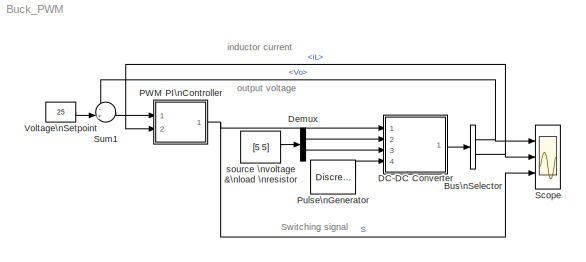
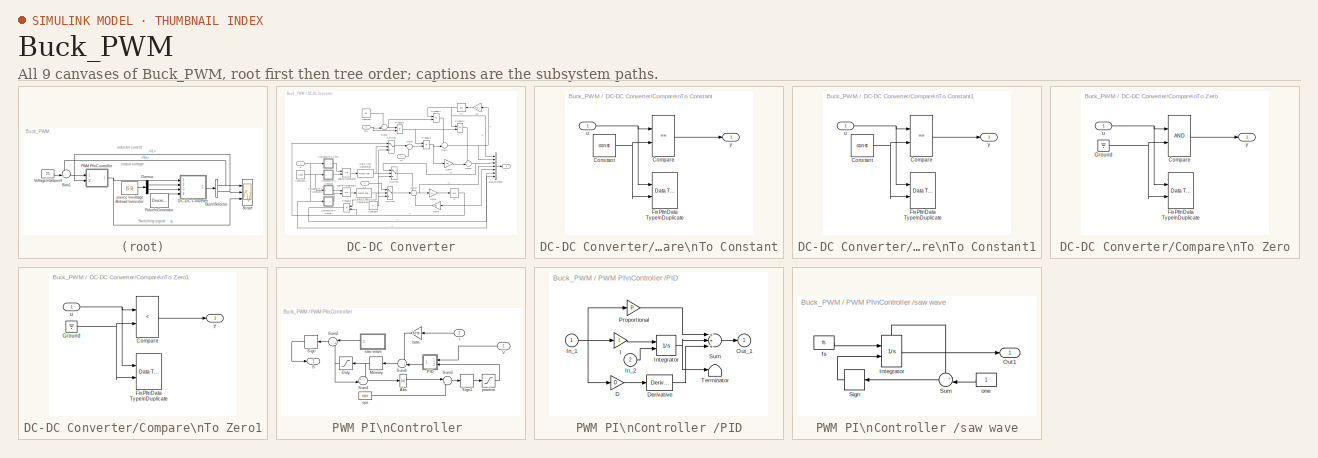
[diagram: thumbnail index - all 9 canvases of the model, root first then tree order]
MODEL Buck_PWM
KIND model
CONFIG InitFcn = buck1
BLOCK [BusSelector] Bus\nSelector
  OutputAsBus = off
  OutputSignals = Vo,iL
  Ports = [1, 2]
  SID = 1
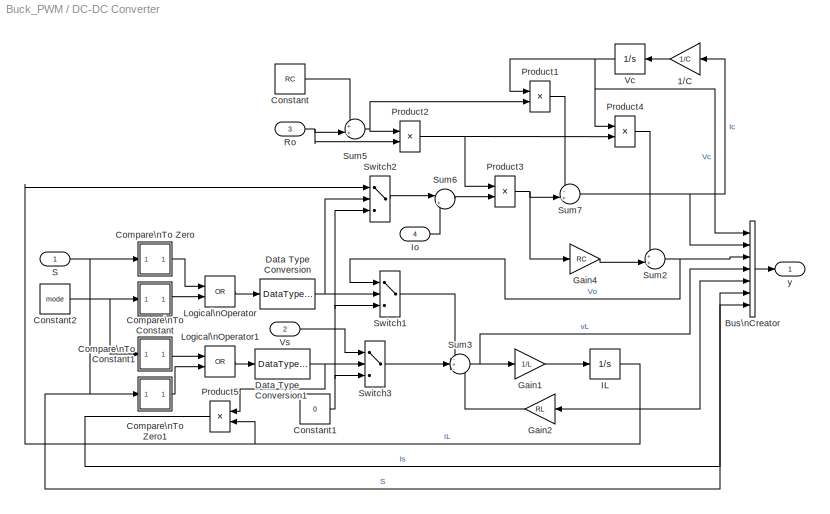
BLOCK [SubSystem] DC-DC Converter
  Ports = [4, 1]
  RequestExecContextInheritance = off
  SID = 2
BLOCK [Gain] DC-DC Converter/1//C
  Gain = 1/C
  SID = 7
BLOCK [BusCreator] DC-DC Converter/Bus\nCreator
  DisplayOption = bar
  InheritFromInputs = on
  Inputs = 7
  Ports = [7, 1]
  SID = 8
BLOCK [SubSystem] DC-DC Converter/Compare\nTo Constant
  Ports = [1, 1]
  RequestExecContextInheritance = off
  SID = 9
BLOCK [RelationalOperator] DC-DC Converter/Compare\nTo Constant/Compare
  InputSameDT = off
  Operator = ==
  OutDataTypeStr = boolean
  Ports = [2, 1]
  SID = 9:2
  ZeroCross = off
BLOCK [Constant] DC-DC Converter/Compare\nTo Constant/Constant
  OutDataTypeStr = Inherit: Inherit via back propagation
  SID = 9:3
  Value = const
BLOCK [Reference] DC-DC Converter/Compare\nTo Constant/FixPt\nData Type\nDuplicate  REF=simulink/Signal\nAttributes/Data Type\nDuplicate
  NumInputPorts = 2
  Ports = [2]
  SID = 9:4
  SourceBlock = simulink/Signal\nAttributes/Data Type\nDuplicate
  SourceProductBaseCode = SL
  SourceProductName = Simulink
  SourceType = Data Type Duplicate
BLOCK [Inport] DC-DC Converter/Compare\nTo Constant/u
  IconDisplay = Port number
  SID = 9:1
BLOCK [Outport] DC-DC Converter/Compare\nTo Constant/y
  IconDisplay = Port number
  SID = 9:5
BLOCK [SubSystem] DC-DC Converter/Compare\nTo Constant1
  Ports = [1, 1]
  RequestExecContextInheritance = off
  SID = 10
BLOCK [RelationalOperator] DC-DC Converter/Compare\nTo Constant1/Compare
  InputSameDT = off
  Operator = ==
  OutDataTypeStr = boolean
  Ports = [2, 1]
  SID = 10:2
  ZeroCross = off
BLOCK [Constant] DC-DC Converter/Compare\nTo Constant1/Constant
  OutDataTypeStr = Inherit: Inherit via back propagation
  SID = 10:3
  Value = const
BLOCK [Reference] DC-DC Converter/Compare\nTo Constant1/FixPt\nData Type\nDuplicate  REF=simulink/Signal\nAttributes/Data Type\nDuplicate
  NumInputPorts = 2
  Ports = [2]
  SID = 10:4
  SourceBlock = simulink/Signal\nAttributes/Data Type\nDuplicate
  SourceProductBaseCode = SL
  SourceProductName = Simulink
  SourceType = Data Type Duplicate
BLOCK [Inport] DC-DC Converter/Compare\nTo Constant1/u
  IconDisplay = Port number
  SID = 10:1
BLOCK [Outport] DC-DC Converter/Compare\nTo Constant1/y
  IconDisplay = Port number
  SID = 10:5
BLOCK [SubSystem] DC-DC Converter/Compare\nTo Zero
  Ports = [1, 1]
  RequestExecContextInheritance = off
  SID = 11
BLOCK [RelationalOperator] DC-DC Converter/Compare\nTo Zero/Compare
  InputSameDT = off
  OutDataTypeStr = boolean
  Ports = [2, 1]
  SID = 11:2
  ZeroCross = off
BLOCK [Reference] DC-DC Converter/Compare\nTo Zero/FixPt\nData Type\nDuplicate  REF=simulink/Signal\nAttributes/Data Type\nDuplicate
  NumInputPorts = 2
  Ports = [2]
  SID = 11:3
  SourceBlock = simulink/Signal\nAttributes/Data Type\nDuplicate
  SourceProductBaseCode = SL
  SourceProductName = Simulink
  SourceType = Data Type Duplicate
BLOCK [Ground] DC-DC Converter/Compare\nTo Zero/Ground
  SID = 11:4
BLOCK [Inport] DC-DC Converter/Compare\nTo Zero/u
  IconDisplay = Port number
  SID = 11:1
BLOCK [Outport] DC-DC Converter/Compare\nTo Zero/y
  IconDisplay = Port number
  SID = 11:5
BLOCK [SubSystem] DC-DC Converter/Compare\nTo Zero1
  Ports = [1, 1]
  RequestExecContextInheritance = off
  SID = 12
BLOCK [RelationalOperator] DC-DC Converter/Compare\nTo Zero1/Compare
  InputSameDT = off
  Operator = <
  OutDataTypeStr = boolean
  Ports = [2, 1]
  SID = 12:2
  ZeroCross = off
BLOCK [Reference] DC-DC Converter/Compare\nTo Zero1/FixPt\nData Type\nDuplicate  REF=simulink/Signal\nAttributes/Data Type\nDuplicate
  NumInputPorts = 2
  Ports = [2]
  SID = 12:3
  SourceBlock = simulink/Signal\nAttributes/Data Type\nDuplicate
  SourceProductBaseCode = SL
  SourceProductName = Simulink
  SourceType = Data Type Duplicate
BLOCK [Ground] DC-DC Converter/Compare\nTo Zero1/Ground
  SID = 12:4
BLOCK [Inport] DC-DC Converter/Compare\nTo Zero1/u
  IconDisplay = Port number
  SID = 12:1
BLOCK [Outport] DC-DC Converter/Compare\nTo Zero1/y
  IconDisplay = Port number
  SID = 12:5
BLOCK [Constant] DC-DC Converter/Constant
  SID = 13
  Value = RC
BLOCK [Constant] DC-DC Converter/Constant1
  SID = 14
  Value = 0
BLOCK [Constant] DC-DC Converter/Constant2
  SID = 15
  Value = mode
BLOCK [DataTypeConversion] DC-DC Converter/Data Type Conversion
  OutDataTypeStr = double
  RndMeth = Floor
  SID = 16
  SaturateOnIntegerOverflow = off
BLOCK [DataTypeConversion] DC-DC Converter/Data Type Conversion1
  OutDataTypeStr = double
  RndMeth = Floor
  SID = 17
  SaturateOnIntegerOverflow = off
BLOCK [Gain] DC-DC Converter/Gain1
  Gain = 1/L
  SID = 18
BLOCK [Gain] DC-DC Converter/Gain2
  Gain = RL
  SID = 19
BLOCK [Gain] DC-DC Converter/Gain4
  Gain = RC
  SID = 20
BLOCK [Integrator] DC-DC Converter/IL
  LimitOutput = on
  LowerSaturationLimit = 0
  Ports = [1, 1]
  SID = 21
BLOCK [Inport] DC-DC Converter/Io
  IconDisplay = Port number
  Port = 4
  SID = 6
BLOCK [Logic] DC-DC Converter/Logical\nOperator
  AllPortsSameDT = off
  Operator = OR
  OutDataTypeStr = boolean
  Ports = [2, 1]
  SID = 22
BLOCK [Logic] DC-DC Converter/Logical\nOperator1
  AllPortsSameDT = off
  Operator = OR
  OutDataTypeStr = boolean
  Ports = [2, 1]
  SID = 23
BLOCK [Product] DC-DC Converter/Product1
  InputSameDT = off
  Inputs = */
  Ports = [2, 1]
  RndMeth = Floor
  SID = 24
BLOCK [Product] DC-DC Converter/Product2
  InputSameDT = off
  Inputs = /*
  Ports = [2, 1]
  RndMeth = Floor
  SID = 25
BLOCK [Product] DC-DC Converter/Product3
  InputSameDT = off
  Ports = [2, 1]
  RndMeth = Floor
  SID = 26
BLOCK [Product] DC-DC Converter/Product4
  InputSameDT = off
  Ports = [2, 1]
  RndMeth = Floor
  SID = 27
BLOCK [Product] DC-DC Converter/Product5
  InputSameDT = off
  Ports = [2, 1]
  RndMeth = Floor
  SID = 28
BLOCK [Inport] DC-DC Converter/Ro
  IconDisplay = Port number
  Port = 3
  SID = 5
BLOCK [Inport] DC-DC Converter/S
  IconDisplay = Port number
  SID = 3
BLOCK [Sum] DC-DC Converter/Sum2
  IconShape = round
  InputSameDT = off
  Inputs = ++|
  OutDataTypeStr = Inherit: Inherit via internal rule
  Ports = [2, 1]
  SID = 29
BLOCK [Sum] DC-DC Converter/Sum3
  IconShape = round
  InputSameDT = off
  Inputs = -+-
  OutDataTypeStr = Inherit: Inherit via internal rule
  Ports = [3, 1]
  SID = 30
BLOCK [Sum] DC-DC Converter/Sum5
  IconShape = round
  InputSameDT = off
  Inputs = ++|
  OutDataTypeStr = Inherit: Inherit via internal rule
  Ports = [2, 1]
  SID = 31
BLOCK [Sum] DC-DC Converter/Sum6
  IconShape = round
  InputSameDT = off
  Inputs = |+-
  OutDataTypeStr = Inherit: Inherit via internal rule
  Ports = [2, 1]
  SID = 32
BLOCK [Sum] DC-DC Converter/Sum7
  IconShape = round
  InputSameDT = off
  Inputs = -+|
  OutDataTypeStr = Inherit: Inherit via internal rule
  Ports = [2, 1]
  SID = 33
BLOCK [Switch] DC-DC Converter/Switch1
  InputSameDT = off
  SID = 34
  Threshold = 0.5
BLOCK [Switch] DC-DC Converter/Switch2
  InputSameDT = off
  SID = 35
  Threshold = 0.5
BLOCK [Switch] DC-DC Converter/Switch3
  InputSameDT = off
  SID = 36
  Threshold = 0.5
BLOCK [Integrator] DC-DC Converter/Vc
  Ports = [1, 1]
  SID = 37
BLOCK [Inport] DC-DC Converter/Vs
  IconDisplay = Port number
  Port = 2
  SID = 4
BLOCK [Outport] DC-DC Converter/y
  IconDisplay = Port number
  SID = 38
BLOCK [Demux] Demux
  DisplayOption = bar
  Outputs = 2
  Ports = [1, 2]
  SID = 39
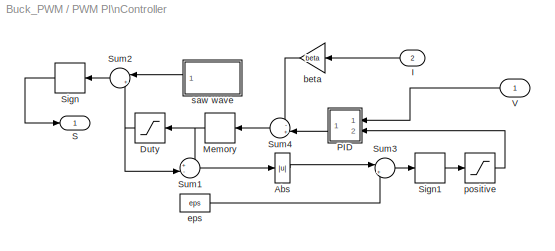
BLOCK [SubSystem] PWM PI\nController 
  Ports = [2, 1]
  RequestExecContextInheritance = off
  SID = 40
BLOCK [Abs] PWM PI\nController /Abs
  SID = 43
  SaturateOnIntegerOverflow = off
BLOCK [Saturate] PWM PI\nController /Duty
  InputPortMap = u0
  LowerLimit = 0.01
  Ports = [1, 1]
  SID = 44
  UpperLimit = 0.99
BLOCK [Inport] PWM PI\nController /I
  IconDisplay = Port number
  Port = 2
  SID = 42
BLOCK [Memory] PWM PI\nController /Memory
  SID = 45
BLOCK [SubSystem] PWM PI\nController /PID
  Ports = [2, 1]
  RequestExecContextInheritance = off
  SID = 46
BLOCK [Gain] PWM PI\nController /PID/D
  Gain = D
  SID = 49
BLOCK [Derivative] PWM PI\nController /PID/Derivative
  SID = 50
BLOCK [Gain] PWM PI\nController /PID/I
  Gain = I
  SID = 51
BLOCK [Inport] PWM PI\nController /PID/In_1
  IconDisplay = Port number
  SID = 47
BLOCK [Inport] PWM PI\nController /PID/In_2
  IconDisplay = Port number
  Port = 2
  SID = 48
BLOCK [Integrator] PWM PI\nController /PID/Integrator
  ExternalReset = level
  Ports = [2, 1]
  SID = 52
BLOCK [Outport] PWM PI\nController /PID/Out_1
  IconDisplay = Port number
  InitialOutput = 0
  SID = 56
BLOCK [Gain] PWM PI\nController /PID/Proportional
  Gain = P
  SID = 53
BLOCK [Sum] PWM PI\nController /PID/Sum
  Inputs = +++
  Ports = [3, 1]
  SID = 54
BLOCK [Terminator] PWM PI\nController /PID/Terminator
  SID = 55
BLOCK [Outport] PWM PI\nController /S
  IconDisplay = Port number
  SID = 73
BLOCK [Signum] PWM PI\nController /Sign
  SID = 57
BLOCK [Signum] PWM PI\nController /Sign1
  SID = 58
BLOCK [Sum] PWM PI\nController /Sum1
  IconShape = round
  InputSameDT = off
  Inputs = +-|
  OutDataTypeStr = Inherit: Inherit via internal rule
  Ports = [2, 1]
  SID = 59
  SaturateOnIntegerOverflow = off
BLOCK [Sum] PWM PI\nController /Sum2
  IconShape = round
  InputSameDT = off
  Inputs = |+-
  OutDataTypeStr = Inherit: Inherit via internal rule
  Ports = [2, 1]
  SID = 60
  SaturateOnIntegerOverflow = off
BLOCK [Sum] PWM PI\nController /Sum3
  IconShape = round
  InputSameDT = off
  Inputs = |+-
  OutDataTypeStr = Inherit: Inherit via internal rule
  Ports = [2, 1]
  SID = 61
  SaturateOnIntegerOverflow = off
BLOCK [Sum] PWM PI\nController /Sum4
  IconShape = round
  InputSameDT = off
  Inputs = -+|
  OutDataTypeStr = Inherit: Inherit via internal rule
  Ports = [2, 1]
  SID = 62
  SaturateOnIntegerOverflow = off
BLOCK [Inport] PWM PI\nController /V
  IconDisplay = Port number
  SID = 41
BLOCK [Gain] PWM PI\nController /beta
  Gain = beta
  OutDataTypeStr = Inherit: Inherit via internal rule
  ParamDataTypeStr = Inherit: Inherit via internal rule
  SID = 63
  SaturateOnIntegerOverflow = off
BLOCK [Constant] PWM PI\nController /eps
  SID = 64
  Value = eps
BLOCK [Saturate] PWM PI\nController /positive
  InputPortMap = u0
  LowerLimit = 0
  Ports = [1, 1]
  SID = 65
  UpperLimit = 1
BLOCK [SubSystem] PWM PI\nController /saw wave
  Ports = [0, 1]
  RequestExecContextInheritance = off
  SID = 66
BLOCK [Integrator] PWM PI\nController /saw wave/Integrator
  ExternalReset = rising
  Ports = [2, 1, 0, 0, 1]
  SID = 67
  ShowStatePort = on
BLOCK [Outport] PWM PI\nController /saw wave/Out1
  IconDisplay = Port number
  SID = 72
BLOCK [Signum] PWM PI\nController /saw wave/Sign
  SID = 68
BLOCK [Sum] PWM PI\nController /saw wave/Sum
  IconShape = round
  InputSameDT = off
  Inputs = +-|
  OutDataTypeStr = Inherit: Inherit via internal rule
  Ports = [2, 1]
  SID = 69
  SaturateOnIntegerOverflow = off
BLOCK [Constant] PWM PI\nController /saw wave/fs
  SID = 70
  Value = fs
BLOCK [Constant] PWM PI\nController /saw wave/one
  SID = 71
BLOCK [DiscretePulseGenerator] Pulse\nGenerator
  Amplitude = 0
  Ports = [0, 1]
  PulseType = Time based
  PulseWidth = 50
  SID = 74
BLOCK [Scope] Scope
  Floating = off
  NumInputPorts = 3
  Ports = [3]
  SID = 75
  ScopeSpecificationString = C++SS(StrPVP('Location','[425, 495, 1266, 969]'),StrPVP('Open','off'),StrPVP('ZoomMode','yonly'),MxPVP('AxesTitles',54,'struct(''axes1'',''%<SignalLabel>'',''axes2'',''%<SignalLabel>'',''axes3'',''%<SignalLabel>'')'),StrPVP('YMin','-5~-5~-5'),StrPVP('YMax','5~5~5'),StrPVP('SaveToWorkspace','on'),StrPVP('SaveName','y'),StrPVP('DataFormat','StructureWithTime'),StrPVP('LimitDataPoints','off'),StrPVP(...<+91ch>
BLOCK [Sum] Sum1
  IconShape = round
  InputSameDT = off
  Inputs = -+|
  OutDataTypeStr = Inherit: Inherit via internal rule
  Ports = [2, 1]
  SID = 76
  SaturateOnIntegerOverflow = off
BLOCK [Constant] Voltage\nSetpoint
  SID = 77
  Value = 25
BLOCK [Constant] source \nvoltage &\nload \nresistor
  SID = 78
  Value = [5 5]
ANNOTATION (root): Switching signal
ANNOTATION (root): inductor current
ANNOTATION (root): output voltage
NET Bus\nSelector:1 -> Scope:1, Sum1:1
NET Bus\nSelector:2 -> PWM PI\nController :2, Scope:2
LINE DC-DC Converter/1//C:1 -> DC-DC Converter/Vc:1
LINE DC-DC Converter/Bus\nCreator:1 -> DC-DC Converter/y:1
LINE DC-DC Converter/Compare\nTo Constant/Compare:1 -> DC-DC Converter/Compare\nTo Constant/y:1
NET DC-DC Converter/Compare\nTo Constant/Constant:1 -> DC-DC Converter/Compare\nTo Constant/Compare:2, DC-DC Converter/Compare\nTo Constant/FixPt\nData Type\nDuplicate:2
NET DC-DC Converter/Compare\nTo Constant/u:1 -> DC-DC Converter/Compare\nTo Constant/Compare:1, DC-DC Converter/Compare\nTo Constant/FixPt\nData Type\nDuplicate:1
LINE DC-DC Converter/Compare\nTo Constant1/Compare:1 -> DC-DC Converter/Compare\nTo Constant1/y:1
NET DC-DC Converter/Compare\nTo Constant1/Constant:1 -> DC-DC Converter/Compare\nTo Constant1/Compare:2, DC-DC Converter/Compare\nTo Constant1/FixPt\nData Type\nDuplicate:2
NET DC-DC Converter/Compare\nTo Constant1/u:1 -> DC-DC Converter/Compare\nTo Constant1/Compare:1, DC-DC Converter/Compare\nTo Constant1/FixPt\nData Type\nDuplicate:1
LINE DC-DC Converter/Compare\nTo Constant1:1 -> DC-DC Converter/Logical\nOperator1:1
LINE DC-DC Converter/Compare\nTo Constant:1 -> DC-DC Converter/Logical\nOperator:2
LINE DC-DC Converter/Compare\nTo Zero/Compare:1 -> DC-DC Converter/Compare\nTo Zero/y:1
NET DC-DC Converter/Compare\nTo Zero/Ground:1 -> DC-DC Converter/Compare\nTo Zero/Compare:2, DC-DC Converter/Compare\nTo Zero/FixPt\nData Type\nDuplicate:2
NET DC-DC Converter/Compare\nTo Zero/u:1 -> DC-DC Converter/Compare\nTo Zero/Compare:1, DC-DC Converter/Compare\nTo Zero/FixPt\nData Type\nDuplicate:1
LINE DC-DC Converter/Compare\nTo Zero1/Compare:1 -> DC-DC Converter/Compare\nTo Zero1/y:1
NET DC-DC Converter/Compare\nTo Zero1/Ground:1 -> DC-DC Converter/Compare\nTo Zero1/Compare:2, DC-DC Converter/Compare\nTo Zero1/FixPt\nData Type\nDuplicate:2
NET DC-DC Converter/Compare\nTo Zero1/u:1 -> DC-DC Converter/Compare\nTo Zero1/Compare:1, DC-DC Converter/Compare\nTo Zero1/FixPt\nData Type\nDuplicate:1
LINE DC-DC Converter/Compare\nTo Zero1:1 -> DC-DC Converter/Logical\nOperator1:2
LINE DC-DC Converter/Compare\nTo Zero:1 -> DC-DC Converter/Logical\nOperator:1
NET DC-DC Converter/Constant1:1 -> DC-DC Converter/Switch1:3, DC-DC Converter/Switch2:3, DC-DC Converter/Switch3:3
NET DC-DC Converter/Constant2:1 -> DC-DC Converter/Compare\nTo Constant1:1, DC-DC Converter/Compare\nTo Constant:1
LINE DC-DC Converter/Constant:1 -> DC-DC Converter/Sum5:1
NET DC-DC Converter/Data Type Conversion1:1 -> DC-DC Converter/Product5:1, DC-DC Converter/Switch3:2
NET DC-DC Converter/Data Type Conversion:1 -> DC-DC Converter/Switch1:2, DC-DC Converter/Switch2:2
LINE DC-DC Converter/Gain1:1 -> DC-DC Converter/IL:1
LINE DC-DC Converter/Gain2:1 -> DC-DC Converter/Sum3:3
LINE DC-DC Converter/Gain4:1 -> DC-DC Converter/Sum2:2
NET DC-DC Converter/IL:1 -> DC-DC Converter/Bus\nCreator:5, DC-DC Converter/Gain2:1, DC-DC Converter/Product5:2, DC-DC Converter/Switch2:1
LINE DC-DC Converter/Io:1 -> DC-DC Converter/Sum6:2
LINE DC-DC Converter/Logical\nOperator1:1 -> DC-DC Converter/Data Type Conversion1:1
LINE DC-DC Converter/Logical\nOperator:1 -> DC-DC Converter/Data Type Conversion:1
LINE DC-DC Converter/Product1:1 -> DC-DC Converter/Sum7:1
NET DC-DC Converter/Product2:1 -> DC-DC Converter/Product3:1, DC-DC Converter/Product4:2
NET DC-DC Converter/Product3:1 -> DC-DC Converter/Gain4:1, DC-DC Converter/Sum7:2
LINE DC-DC Converter/Product4:1 -> DC-DC Converter/Sum2:1
LINE DC-DC Converter/Product5:1 -> DC-DC Converter/Bus\nCreator:6
NET DC-DC Converter/Ro:1 -> DC-DC Converter/Product2:2, DC-DC Converter/Sum5:2
NET DC-DC Converter/S:1 -> DC-DC Converter/Bus\nCreator:7, DC-DC Converter/Compare\nTo Zero1:1, DC-DC Converter/Compare\nTo Zero:1
NET DC-DC Converter/Sum2:1 -> DC-DC Converter/Bus\nCreator:3, DC-DC Converter/Switch1:1
NET DC-DC Converter/Sum3:1 -> DC-DC Converter/Bus\nCreator:4, DC-DC Converter/Gain1:1
NET DC-DC Converter/Sum5:1 -> DC-DC Converter/Product1:2, DC-DC Converter/Product2:1
LINE DC-DC Converter/Sum6:1 -> DC-DC Converter/Product3:2
NET DC-DC Converter/Sum7:1 -> DC-DC Converter/1//C:1, DC-DC Converter/Bus\nCreator:2
LINE DC-DC Converter/Switch1:1 -> DC-DC Converter/Sum3:1
LINE DC-DC Converter/Switch2:1 -> DC-DC Converter/Sum6:1
LINE DC-DC Converter/Switch3:1 -> DC-DC Converter/Sum3:2
NET DC-DC Converter/Vc:1 -> DC-DC Converter/Bus\nCreator:1, DC-DC Converter/Product1:1, DC-DC Converter/Product4:1
LINE DC-DC Converter/Vs:1 -> DC-DC Converter/Switch3:1
LINE DC-DC Converter:1 -> Bus\nSelector:1
LINE Demux:1 -> DC-DC Converter:2
LINE Demux:2 -> DC-DC Converter:3
LINE PWM PI\nController /Abs:1 -> PWM PI\nController /Sum3:1
NET PWM PI\nController /Duty:1 -> PWM PI\nController /Sum1:2, PWM PI\nController /Sum2:2
LINE PWM PI\nController /I:1 -> PWM PI\nController /beta:1
NET PWM PI\nController /Memory:1 -> PWM PI\nController /Duty:1, PWM PI\nController /Sum1:1
LINE PWM PI\nController /PID/D:1 -> PWM PI\nController /PID/Derivative:1
LINE PWM PI\nController /PID/Derivative:1 -> PWM PI\nController /PID/Sum:3
LINE PWM PI\nController /PID/I:1 -> PWM PI\nController /PID/Integrator:1
NET PWM PI\nController /PID/In_1:1 -> PWM PI\nController /PID/D:1, PWM PI\nController /PID/I:1, PWM PI\nController /PID/Proportional:1
LINE PWM PI\nController /PID/In_2:1 -> PWM PI\nController /PID/Integrator:2
NET PWM PI\nController /PID/Integrator:1 -> PWM PI\nController /PID/Sum:2, PWM PI\nController /PID/Terminator:1
LINE PWM PI\nController /PID/Proportional:1 -> PWM PI\nController /PID/Sum:1
LINE PWM PI\nController /PID/Sum:1 -> PWM PI\nController /PID/Out_1:1
LINE PWM PI\nController /PID:1 -> PWM PI\nController /Sum4:2
LINE PWM PI\nController /Sign1:1 -> PWM PI\nController /positive:1
LINE PWM PI\nController /Sign:1 -> PWM PI\nController /S:1
LINE PWM PI\nController /Sum1:1 -> PWM PI\nController /Abs:1
LINE PWM PI\nController /Sum2:1 -> PWM PI\nController /Sign:1
LINE PWM PI\nController /Sum3:1 -> PWM PI\nController /Sign1:1
LINE PWM PI\nController /Sum4:1 -> PWM PI\nController /Memory:1
LINE PWM PI\nController /V:1 -> PWM PI\nController /PID:1
LINE PWM PI\nController /beta:1 -> PWM PI\nController /Sum4:1
LINE PWM PI\nController /eps:1 -> PWM PI\nController /Sum3:2
LINE PWM PI\nController /positive:1 -> PWM PI\nController /PID:2
LINE PWM PI\nController /saw wave/Integrator:1 -> PWM PI\nController /saw wave/Out1:1
LINE PWM PI\nController /saw wave/Integrator:state -> PWM PI\nController /saw wave/Sum:1
LINE PWM PI\nController /saw wave/Sign:1 -> PWM PI\nController /saw wave/Integrator:2
LINE PWM PI\nController /saw wave/Sum:1 -> PWM PI\nController /saw wave/Sign:1
LINE PWM PI\nController /saw wave/fs:1 -> PWM PI\nController /saw wave/Integrator:1
LINE PWM PI\nController /saw wave/one:1 -> PWM PI\nController /saw wave/Sum:2
LINE PWM PI\nController /saw wave:1 -> PWM PI\nController /Sum2:1
NET PWM PI\nController :1 -> DC-DC Converter:1, Scope:3
LINE Pulse\nGenerator:1 -> DC-DC Converter:4
LINE Sum1:1 -> PWM PI\nController :1
LINE Voltage\nSetpoint:1 -> Sum1:2
LINE source \nvoltage &\nload \nresistor:1 -> Demux:1
note: NET lines group one-source signal fan-out (src -> all destinations, sorted); 1:1 wires keep LINE
